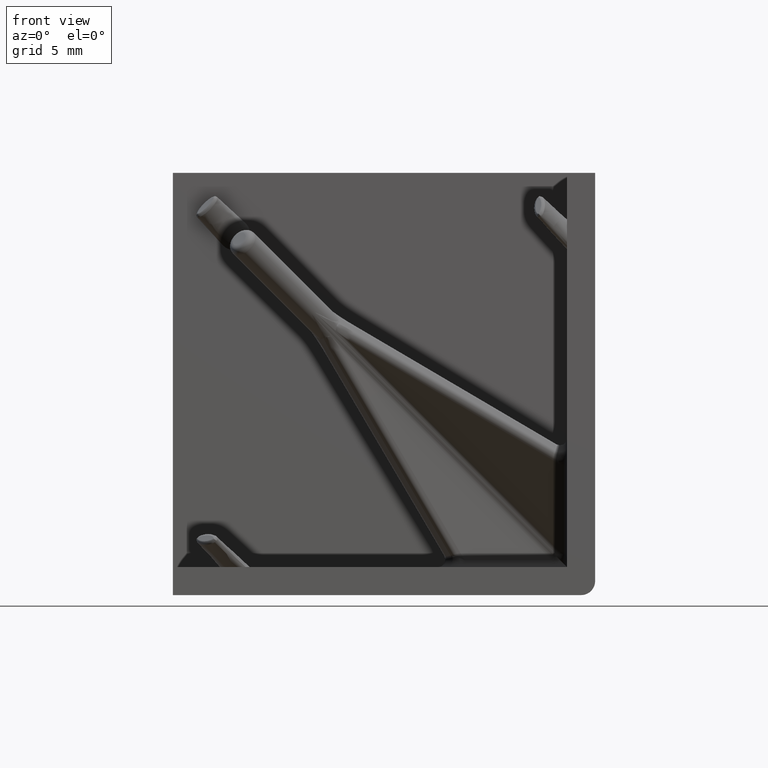
[diagram: clean part render]
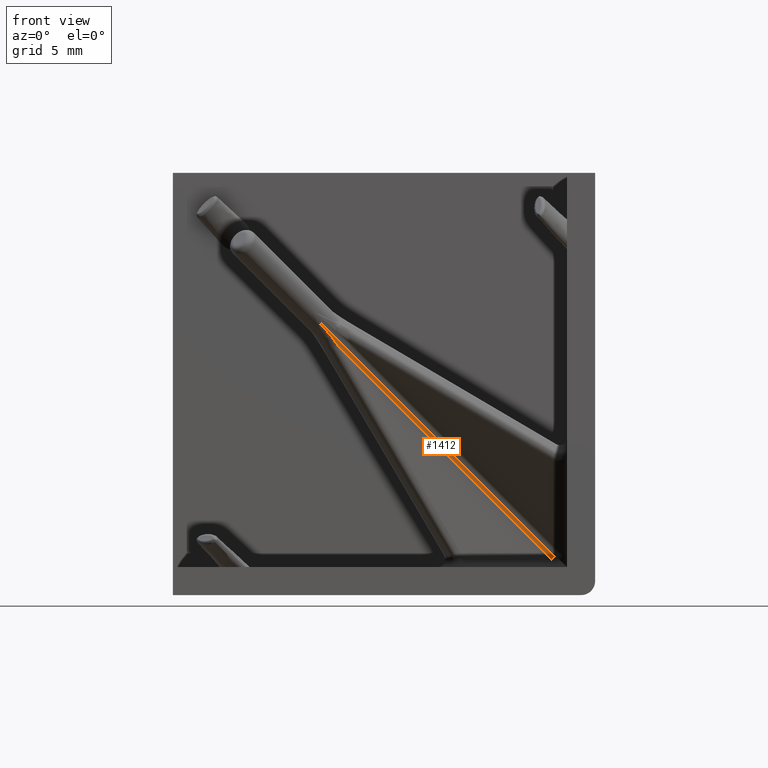
[diagram: same view with one face highlighted and labeled with its STEP entity id]
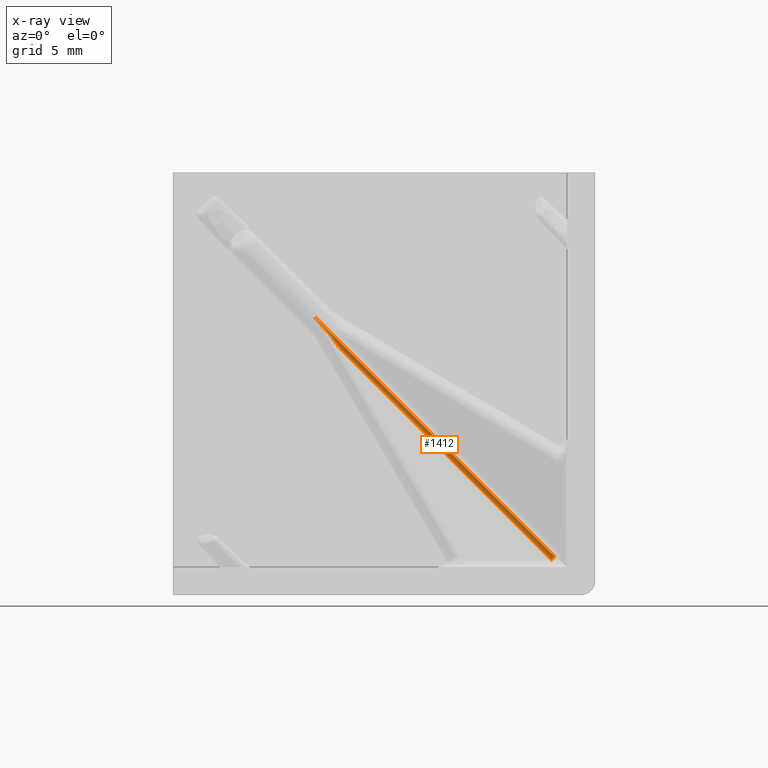
[diagram: x-ray of the same camera — body ghosted, the highlighted face saturated]
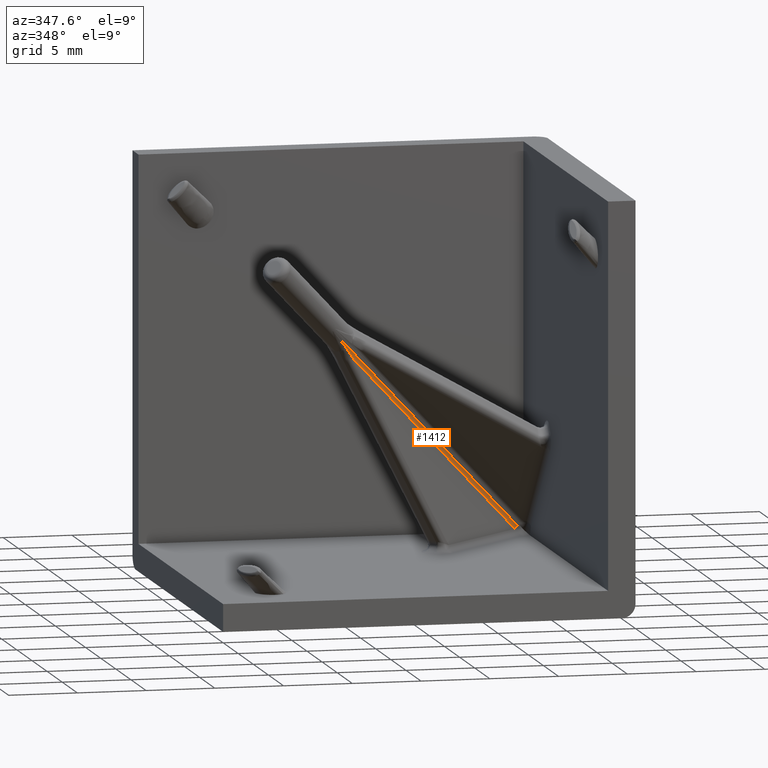
[diagram: same view with one face highlighted and labeled with its STEP entity id]
A machine part, front view. The second image highlights one B-rep face of the part: STEP entity #1412.
The next image is the same camera in x-ray: the body ghosted, the highlighted face saturated — about 0% of this face is hidden behind the body in this view.
A second angle (auxiliary view) of the same face is appended — the face is thin or edge-on in the first view.
In plain terms, the highlighted cylindrical surface (edge-blend (fillet) strip) has radius 0.5 mm, axis along (-0.5774, -0.5774, 0.5774).
Its self-contained STEP definition (entity closure, byte-faithful):
#112=ELLIPSE('',#1551,2.68168083461315,0.256028349931987);
#145=CIRCLE('',#1550,0.499999999999998);
#183=CYLINDRICAL_SURFACE('',#1549,0.500000000000001);
#246=FACE_OUTER_BOUND('',#345,.T.);
#345=EDGE_LOOP('',(#1170,#1171,#1172,#1173,#1174));
#412=LINE('',#3510,#484);
#457=LINE('',#3838,#529);
#484=VECTOR('',#1704,29.8466196564254);
#529=VECTOR('',#1829,25.9829163512648);
#572=B_SPLINE_CURVE_WITH_KNOTS('',3,(#4616,#4617,#4618,#4619,#4620,#4621,
#4622,#4623,#4624,#4625,#4626,#4627,#4628),.UNSPECIFIED.,.F.,.F.,(4,3,3,
3,4),(-1.78456705791747E-5,0.00123372077522597,0.00185950399812854,0.00217564417147289,
0.00248528722103111),.UNSPECIFIED.);
#653=VERTEX_POINT('',#3492);
#654=VERTEX_POINT('',#3509);
#703=VERTEX_POINT('',#3833);
#705=VERTEX_POINT('',#3836);
#711=VERTEX_POINT('',#4615);
#789=EDGE_CURVE('',#653,#654,#412,.T.);
#864=EDGE_CURVE('',#705,#703,#457,.T.);
#878=EDGE_CURVE('',#705,#654,#145,.T.);
#879=EDGE_CURVE('',#653,#711,#572,.T.);
#880=EDGE_CURVE('',#711,#703,#112,.T.);
#1170=ORIENTED_EDGE('',*,*,#864,.F.);
#1171=ORIENTED_EDGE('',*,*,#878,.T.);
#1172=ORIENTED_EDGE('',*,*,#789,.F.);
#1173=ORIENTED_EDGE('',*,*,#879,.T.);
#1174=ORIENTED_EDGE('',*,*,#880,.T.);
#1412=ADVANCED_FACE('',(#246),#183,.F.);
#1549=AXIS2_PLACEMENT_3D('',#4613,#1854,#1855);
#1550=AXIS2_PLACEMENT_3D('',#4614,#1856,#1857);
#1551=AXIS2_PLACEMENT_3D('',#4629,#1858,#1859);
#1704=DIRECTION('',(0.577350269189624,0.577350269189624,-0.57735026918963));
#1829=DIRECTION('',(-0.577350269189627,-0.57735026918962,0.57735026918963));
#1854=DIRECTION('center_axis',(-0.577350269189624,-0.577350269189624,0.57735026918963));
#1855=DIRECTION('ref_axis',(0.707106781186551,4.16333634234434E-16,0.707106781186544));
#1856=DIRECTION('center_axis',(0.577350269189624,0.577350269189624,-0.57735026918963));
#1857=DIRECTION('ref_axis',(0.707106781186555,-6.49480469405716E-15,0.70710678118654));
#1858=DIRECTION('center_axis',(-0.481298302390692,-0.481298321875104,-0.732600757217768));
#1859=DIRECTION('ref_axis',(0.509063711706651,0.526907739199588,-0.680604416526243));
#3492=CARTESIAN_POINT('',(9.86500703682761,8.66748836848546,-10.0266484834872));
#3509=CARTESIAN_POINT('',(27.0969611837396,25.8994416349557,-27.2586027492405));
#3510=CARTESIAN_POINT('',(28.3452926610943,27.1477731123104,-28.5069342265952));
#3833=CARTESIAN_POINT('',(11.9065891201237,10.8459289483437,-12.4987562502656));
#3836=CARTESIAN_POINT('',(26.907832869858,25.8471726980778,-27.5));
#3838=CARTESIAN_POINT('',(0.156164347212645,-0.904495824567189,-0.748331477354529));
#4613=CARTESIAN_POINT('Origin',(28.509717737806,26.7419507848393,-28.7483314773547));
#4614=CARTESIAN_POINT('Origin',(27.2613862604512,25.4936193074845,-27.5));
#4615=CARTESIAN_POINT('',(11.21779549929,10.1081625257983,-11.5615459965946));
#4616=CARTESIAN_POINT('Ctrl Pts',(9.86500729070466,8.66748774192074,-10.0266488562053));
#4617=CARTESIAN_POINT('Ctrl Pts',(10.0966586967717,8.90933238913807,-10.2754365172838));
#4618=CARTESIAN_POINT('Ctrl Pts',(10.3278685991725,9.15097503541036,-10.5248918829233));
#4619=CARTESIAN_POINT('Ctrl Pts',(10.5562881361173,9.39194411076277,-10.7773789693214));
#4620=CARTESIAN_POINT('Ctrl Pts',(10.6704979045897,9.51242864843897,-10.9036225125205));
#4621=CARTESIAN_POINT('Ctrl Pts',(10.7840611366793,9.63276593120415,-11.0305609783088));
#4622=CARTESIAN_POINT('Ctrl Pts',(10.8955400390073,9.75256463529358,-11.1597976525489));
#4623=CARTESIAN_POINT('Ctrl Pts',(10.9518581987412,9.81308588561025,-11.2250868822716));
#4624=CARTESIAN_POINT('Ctrl Pts',(11.0076055692529,9.8734357740488,-11.2909207795276));
#4625=CARTESIAN_POINT('Ctrl Pts',(11.0621947414192,9.93345940016405,-11.3581622197232));
#4626=CARTESIAN_POINT('Ctrl Pts',(11.1156620295642,9.9922494566104,-11.4240217540513));
#4627=CARTESIAN_POINT('Ctrl Pts',(11.1680461430878,10.0507842959995,-11.4911661816081));
#4628=CARTESIAN_POINT('Ctrl Pts',(11.21779549929,10.1081625257983,-11.5615459965946));
#4629=CARTESIAN_POINT('Origin',(11.9086969094248,10.4828382008527,-12.2616004865954));